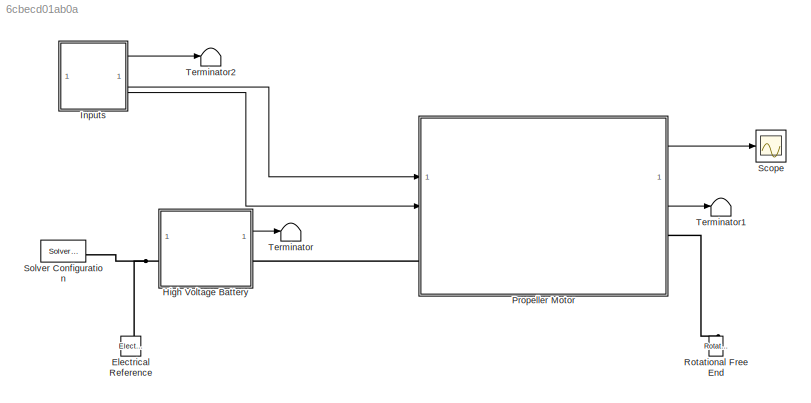
MODEL slx_6cbecd01ab0a
KIND model
CONFIG AbsTol = 1e-3
CONFIG EnableMultiTasking = off
CONFIG FixedStep = auto
CONFIG MaxStep = auto
CONFIG MinStep = auto
CONFIG RelTol = 1e-3
CONFIG SampleTimeConstraint = Unconstrained
CONFIG SolverName = VariableStepAuto
CONFIG StartTime = 0.0
CONFIG StopTime = 300
BLOCK [Reference] Electrical Reference  REF=fl_lib/Electrical/Electrical Elements/Electrical Reference
  NameLocation = left
  SourceBlock = fl_lib/Electrical/Electrical Elements/Electrical Reference
  SourceType = Electrical Reference
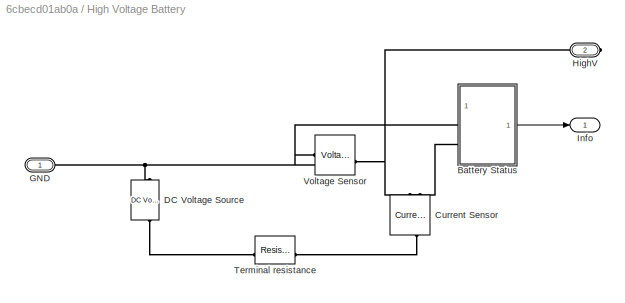
BLOCK [SubSystem] High Voltage Battery
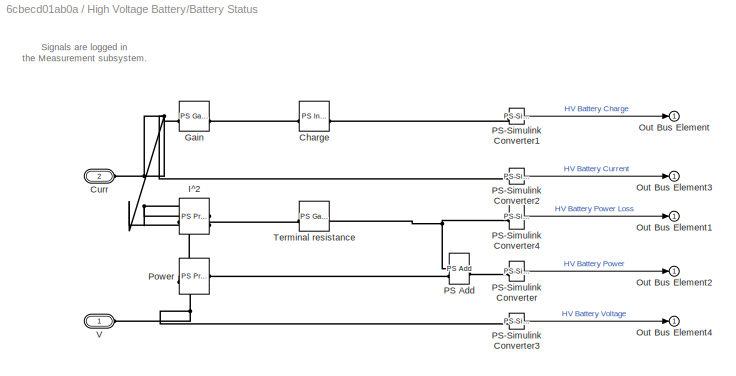
BLOCK [SubSystem] High Voltage Battery/Battery Status
BLOCK [Reference] High Voltage Battery/Battery Status/Charge  REF=fl_lib/Physical Signals/Linear Operators/PS Integrator
  AttributesFormatString = %<x0> [%<x0_unit>]
  SourceBlock = fl_lib/Physical Signals/Linear Operators/PS Integrator
  SourceType = PS Integrator
BLOCK [PMIOPort] High Voltage Battery/Battery Status/Curr
  Port = 2
  Side = Left
BLOCK [Reference] High Voltage Battery/Battery Status/Gain  REF=fl_lib/Physical Signals/Functions/PS Gain
  AttributesFormatString = %<gain>
  SourceBlock = fl_lib/Physical Signals/Functions/PS Gain
  SourceType = PS Gain
BLOCK [Reference] High Voltage Battery/Battery Status/I^2  REF=fl_lib/Physical Signals/Functions/PS Product
  SourceBlock = fl_lib/Physical Signals/Functions/PS Product
  SourceType = PS Product
BLOCK [Outport] High Voltage Battery/Battery Status/Out Bus Element
  AttributesFormatString = %<Unit>
BLOCK [Outport] High Voltage Battery/Battery Status/Out Bus Element1
  AttributesFormatString = %<Unit>
BLOCK [Outport] High Voltage Battery/Battery Status/Out Bus Element2
  AttributesFormatString = %<Unit>
BLOCK [Outport] High Voltage Battery/Battery Status/Out Bus Element3
  AttributesFormatString = %<Unit>
BLOCK [Outport] High Voltage Battery/Battery Status/Out Bus Element4
  AttributesFormatString = %<Unit>
BLOCK [Reference] High Voltage Battery/Battery Status/PS Add  REF=fl_lib/Physical Signals/Functions/PS Add
  SourceBlock = fl_lib/Physical Signals/Functions/PS Add
  SourceType = PS Add
BLOCK [Reference] High Voltage Battery/Battery Status/PS-Simulink Converter  REF=nesl_utility/PS-Simulink
Converter
  AttributesFormatString = %<Unit>
  SourceBlock = nesl_utility/PS-Simulink\nConverter
  SourceType = PS-Simulink\nConverter
BLOCK [Reference] High Voltage Battery/Battery Status/PS-Simulink Converter1  REF=nesl_utility/PS-Simulink
Converter
  AttributesFormatString = %<Unit>
  SourceBlock = nesl_utility/PS-Simulink\nConverter
  SourceType = PS-Simulink\nConverter
BLOCK [Reference] High Voltage Battery/Battery Status/PS-Simulink Converter2  REF=nesl_utility/PS-Simulink
Converter
  AttributesFormatString = %<Unit>
  SourceBlock = nesl_utility/PS-Simulink\nConverter
  SourceType = PS-Simulink\nConverter
BLOCK [Reference] High Voltage Battery/Battery Status/PS-Simulink Converter3  REF=nesl_utility/PS-Simulink
Converter
  AttributesFormatString = %<Unit>
  SourceBlock = nesl_utility/PS-Simulink\nConverter
  SourceType = PS-Simulink\nConverter
BLOCK [Reference] High Voltage Battery/Battery Status/PS-Simulink Converter4  REF=nesl_utility/PS-Simulink
Converter
  AttributesFormatString = %<Unit>
  SourceBlock = nesl_utility/PS-Simulink\nConverter
  SourceType = PS-Simulink\nConverter
BLOCK [Reference] High Voltage Battery/Battery Status/Power  REF=fl_lib/Physical Signals/Functions/PS Product
  SourceBlock = fl_lib/Physical Signals/Functions/PS Product
  SourceType = PS Product
BLOCK [Reference] High Voltage Battery/Battery Status/Terminal resistance  REF=fl_lib/Physical Signals/Functions/PS Gain
  AttributesFormatString = %<gain> [%<gain_unit>]
  SourceBlock = fl_lib/Physical Signals/Functions/PS Gain
  SourceType = PS Gain
BLOCK [PMIOPort] High Voltage Battery/Battery Status/V
  Side = Left
BLOCK [Reference] High Voltage Battery/Current Sensor  REF=fl_lib/Electrical/Electrical Sensors/Current Sensor
  NameLocation = right
  SourceBlock = fl_lib/Electrical/Electrical Sensors/Current Sensor
  SourceType = Current Sensor
BLOCK [Reference] High Voltage Battery/DC Voltage Source  REF=fl_lib/Electrical/Electrical Sources/DC Voltage Source
  AttributesFormatString = %<v0> [%<v0_unit>]
  NameLocation = left
  SourceBlock = fl_lib/Electrical/Electrical Sources/DC Voltage Source
  SourceType = DC Voltage Source
BLOCK [PMIOPort] High Voltage Battery/GND
  Side = Left
BLOCK [PMIOPort] High Voltage Battery/HighV
  Port = 2
  Side = Right
BLOCK [Outport] High Voltage Battery/Info
BLOCK [Reference] High Voltage Battery/Terminal resistance  REF=fl_lib/Electrical/Electrical Elements/Resistor
  AttributesFormatString = %<R> [%<R_unit>]
  NameLocation = top
  SourceBlock = fl_lib/Electrical/Electrical Elements/Resistor
  SourceType = Resistor
BLOCK [Reference] High Voltage Battery/Voltage Sensor  REF=fl_lib/Electrical/Electrical Sensors/Voltage Sensor
  NameLocation = top
  SourceBlock = fl_lib/Electrical/Electrical Sensors/Voltage Sensor
  SourceType = Voltage Sensor
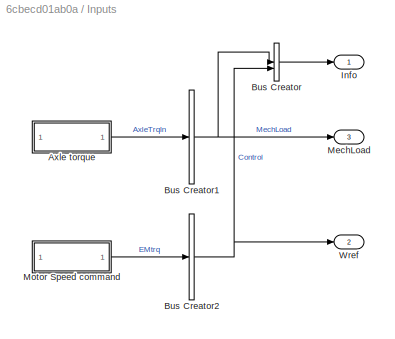
BLOCK [SubSystem] Inputs
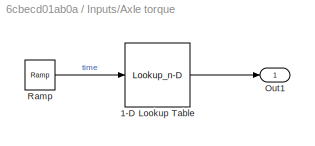
BLOCK [SubSystem] Inputs/Axle torque
  NameLocation = left
BLOCK [Lookup_n-D] Inputs/Axle torque/1-D Lookup Table
  BreakpointsForDimension1 = [0            20          20.1          20.2          20.3          20.4          20.5          20.6          20.7          20.8          20.9            21          21.1          21.2          21.3          21.4          21.5          21.6          21.7          21.8          21.9            22          22.1          22.2          22.3          22.4          22.5          22.6          22.7      ...<+6659ch>
  InputPortMap = u0
  InternalRulePriority = Speed
  NumberOfTableDimensions = 1
  RndMeth = Simplest
  Table = [0.1         0.1         0.1     0.10001     0.10003     0.10004     0.10007      0.1001     0.10014     0.10018     0.10022     0.10028     0.10033      0.1004     0.10047     0.10054     0.10062      0.1007     0.10079     0.10088     0.10098     0.10109      0.1012     0.10131     0.10143     0.10156     0.10168     0.10182     0.10196      0.1021     0.10225      0.1024     0.10256     0.10273...<+5653ch>
BLOCK [Outport] Inputs/Axle torque/Out1
BLOCK [Reference] Inputs/Axle torque/Ramp  REF=simulink/Sources/Ramp
  AttributesFormatString = Slope: %<slope>\nStart time: %<start>\nInitial output: %<InitialOutput>
  SourceBlock = simulink/Sources/Ramp
  SourceType = Ramp
BLOCK [BusCreator] Inputs/Bus Creator
  DisplayOption = bar
  InheritFromInputs = on
  Inputs = 2
BLOCK [BusCreator] Inputs/Bus Creator1
  DisplayOption = bar
  InheritFromInputs = on
  Inputs = 1
BLOCK [BusCreator] Inputs/Bus Creator2
  DisplayOption = bar
  InheritFromInputs = on
  Inputs = 1
BLOCK [Outport] Inputs/Info
BLOCK [Outport] Inputs/MechLoad
  Port = 3
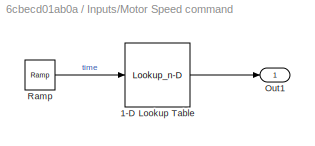
BLOCK [SubSystem] Inputs/Motor Speed command
  NameLocation = left
BLOCK [Lookup_n-D] Inputs/Motor Speed command/1-D Lookup Table
  BreakpointsForDimension1 = [0            20          20.5            21          21.5            22          22.5            23          23.5            24          24.5            25          25.5            26          26.5            27          27.5            28          28.5            29          29.5            30          30.5            31          31.5            32          32.5            33          33.5      ...<+1059ch>
  InputPortMap = u0
  InternalRulePriority = Speed
  NumberOfTableDimensions = 1
  RndMeth = Simplest
  Table = [0             0    0.04648438      0.184375     0.4113281         0.725      1.123047      1.603125      2.162891           2.8      3.512109      4.296875      5.151953         6.075      7.063672      8.115625      9.228516          10.4      11.62773      12.90938      14.24258        15.625       17.0543      18.52813      20.04414          21.6      23.19336      24.82187       26.4832      ...<+1059ch>
BLOCK [Outport] Inputs/Motor Speed command/Out1
BLOCK [Reference] Inputs/Motor Speed command/Ramp  REF=simulink/Sources/Ramp
  AttributesFormatString = Slope: %<slope>\nStart time: %<start>\nInitial output: %<InitialOutput>
  SourceBlock = simulink/Sources/Ramp
  SourceType = Ramp
BLOCK [Outport] Inputs/Wref
  Port = 2
BLOCK [SubSystem] Propeller Motor
  Kd = 0.00644
  Ki = 0.00568
  Kp = 0.0129
  N = 382
  ReferencedSubsystem = PropulsionMotor
BLOCK [Reference] Rotational Free End  REF=fl_lib/Mechanical/Rotational Elements/Rotational Free End
  NameLocation = right
  SourceBlock = fl_lib/Mechanical/Rotational Elements/Rotational Free End
  SourceType = Rotational Free End
BLOCK [Scope] Scope
  Floating = off
  NumInputPorts = 1
  ScopeSpecificationString = Simulink.scopes.TimeScopeBlockCfg('CurrentConfiguration', extmgr.ConfigurationSet(extmgr.Configuration('Core','General UI',true),extmgr.Configuration('Core','Source UI',true),extmgr.Configuration('Sources','WiredSimulink',true),extmgr.Configuration('Visuals','Time Domain',true,'SerializedDisplays',{struct('MinYLimReal','-18.46086','MaxYLimReal','113.34276','YLabelReal','','MinYLimMag','0.00000','M...<+1495ch>
BLOCK [Reference] Solver Configuration  REF=nesl_utility/Solver
Configuration
  AttributesFormatString = Local solver %<UseLocalSolver>
  NameLocation = top
  SourceBlock = nesl_utility/Solver\nConfiguration
  SourceType = Solver\nConfiguration
BLOCK [Terminator] Terminator
BLOCK [Terminator] Terminator1
BLOCK [Terminator] Terminator2
ANNOTATION High Voltage Battery/Battery Status: Signals are logged in the Measurement subsystem.
LINE High Voltage Battery/Battery Status/PS-Simulink Converter1:1 -> High Voltage Battery/Battery Status/Out Bus Element:1
LINE High Voltage Battery/Battery Status/PS-Simulink Converter2:1 -> High Voltage Battery/Battery Status/Out Bus Element3:1
LINE High Voltage Battery/Battery Status/PS-Simulink Converter3:1 -> High Voltage Battery/Battery Status/Out Bus Element4:1
LINE High Voltage Battery/Battery Status/PS-Simulink Converter4:1 -> High Voltage Battery/Battery Status/Out Bus Element1:1
LINE High Voltage Battery/Battery Status/PS-Simulink Converter:1 -> High Voltage Battery/Battery Status/Out Bus Element2:1
LINE High Voltage Battery/Battery Status:1 -> High Voltage Battery/Info:1
LINE High Voltage Battery:1 -> Terminator:1
LINE Inputs/Axle torque/1-D Lookup Table:1 -> Inputs/Axle torque/Out1:1
LINE Inputs/Axle torque/Ramp:1 -> Inputs/Axle torque/1-D Lookup Table:1
LINE Inputs/Axle torque:1 -> Inputs/Bus Creator1:1
NET Inputs/Bus Creator1:1 -> Inputs/Bus Creator:1, Inputs/MechLoad:1
NET Inputs/Bus Creator2:1 -> Inputs/Bus Creator:2, Inputs/Wref:1
LINE Inputs/Bus Creator:1 -> Inputs/Info:1
LINE Inputs/Motor Speed command/1-D Lookup Table:1 -> Inputs/Motor Speed command/Out1:1
LINE Inputs/Motor Speed command/Ramp:1 -> Inputs/Motor Speed command/1-D Lookup Table:1
LINE Inputs/Motor Speed command:1 -> Inputs/Bus Creator2:1
LINE Inputs:1 -> Terminator2:1
LINE Inputs:2 -> Propeller Motor:1
LINE Inputs:3 -> Propeller Motor:2
LINE Propeller Motor:1 -> Scope:1
LINE Propeller Motor:2 -> Terminator1:1
PNET net1: Electrical Reference:LConn1 -- High Voltage Battery:LConn1 -- Solver Configuration:RConn1
PLINE High Voltage Battery/Battery Status/Charge:LConn1 -- High Voltage Battery/Battery Status/Gain:RConn1
PLINE High Voltage Battery/Battery Status/Charge:RConn1 -- High Voltage Battery/Battery Status/PS-Simulink Converter1:LConn1
PNET net2: High Voltage Battery/Battery Status/Curr:RConn1 -- High Voltage Battery/Battery Status/Gain:LConn1 -- High Voltage Battery/Battery Status/I^2:LConn1 -- High Voltage Battery/Battery Status/I^2:LConn2 -- High Voltage Battery/Battery Status/PS-Simulink Converter2:LConn1 -- High Voltage Battery/Battery Status/Power:LConn2
PLINE High Voltage Battery/Battery Status/I^2:RConn1 -- High Voltage Battery/Battery Status/Terminal resistance:LConn1
PNET net3: High Voltage Battery/Battery Status/PS Add:LConn1 -- High Voltage Battery/Battery Status/PS-Simulink Converter4:LConn1 -- High Voltage Battery/Battery Status/Terminal resistance:RConn1
PLINE High Voltage Battery/Battery Status/PS Add:LConn2 -- High Voltage Battery/Battery Status/Power:RConn1
PLINE High Voltage Battery/Battery Status/PS Add:RConn1 -- High Voltage Battery/Battery Status/PS-Simulink Converter:LConn1
PNET net4: High Voltage Battery/Battery Status/PS-Simulink Converter3:LConn1 -- High Voltage Battery/Battery Status/Power:LConn1 -- High Voltage Battery/Battery Status/V:RConn1
PLINE High Voltage Battery/Battery Status:LConn1 -- High Voltage Battery/Voltage Sensor:RConn1
PLINE High Voltage Battery/Battery Status:LConn2 -- High Voltage Battery/Current Sensor:RConn1
PLINE High Voltage Battery/Current Sensor:LConn1 -- High Voltage Battery/Terminal resistance:RConn1
PNET net5: High Voltage Battery/Current Sensor:RConn2 -- High Voltage Battery/HighV:RConn1 -- High Voltage Battery/Voltage Sensor:LConn1
PLINE High Voltage Battery/DC Voltage Source:LConn1 -- High Voltage Battery/Terminal resistance:LConn1
PNET net6: High Voltage Battery/DC Voltage Source:RConn1 -- High Voltage Battery/GND:RConn1 -- High Voltage Battery/Voltage Sensor:RConn2
PLINE High Voltage Battery:RConn1 -- Propeller Motor:LConn1
PLINE Propeller Motor:RConn1 -- Rotational Free End:LConn1
note: NET lines group one-source signal fan-out (src -> all destinations, sorted); 1:1 wires keep LINE; PNET lines group multi-terminal physical nets as a canonical sorted terminal list (undirected conserving connections); 2-terminal nets keep the pairwise PLINE form
